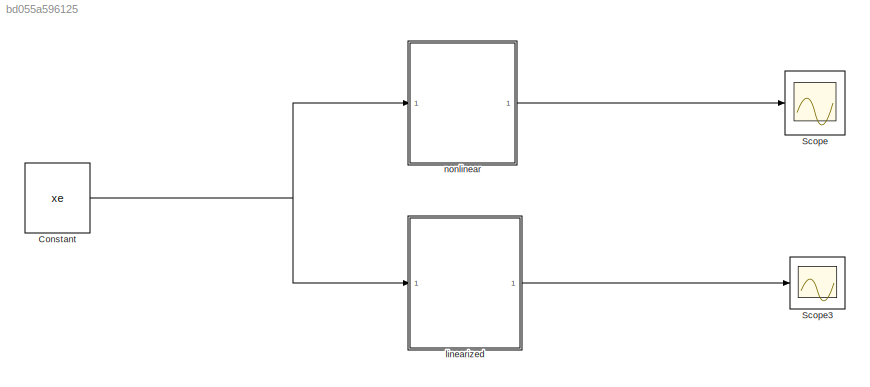
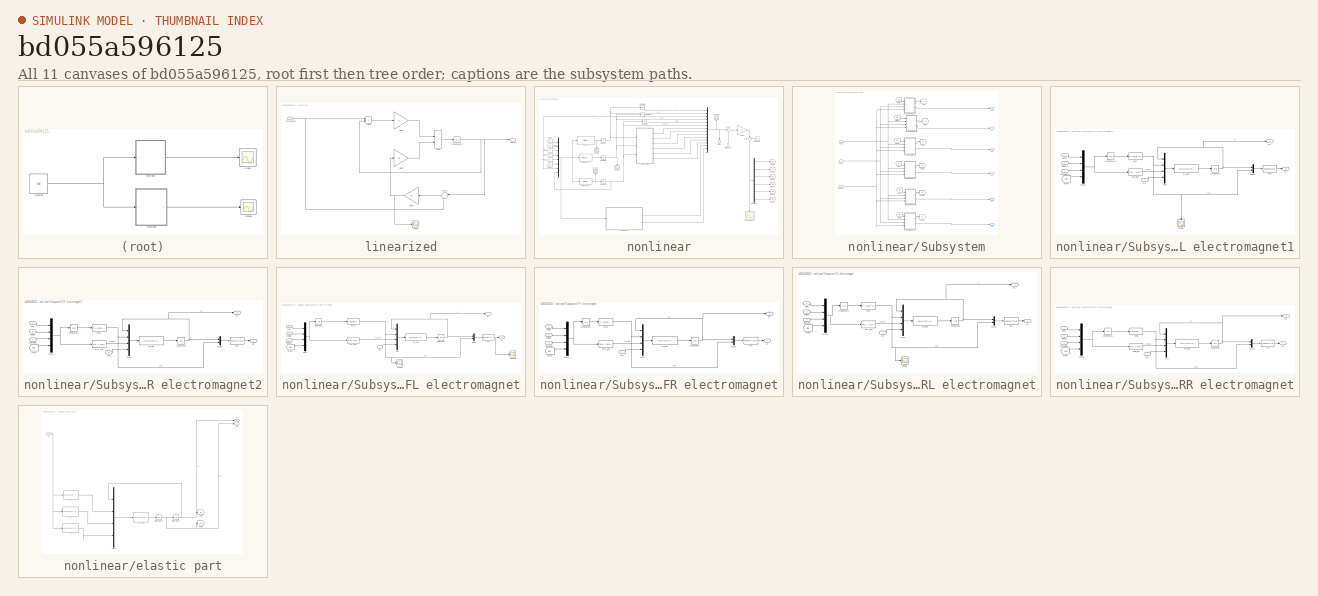
[diagram: thumbnail index - all 11 canvases of the model, root first then tree order]
MODEL slx_bd055a596125
KIND model
CONFIG AbsTol = auto
CONFIG EnableMultiTasking = off
CONFIG FixedStep = auto
CONFIG MaxStep = auto
CONFIG MinStep = auto
CONFIG RelTol = 1e-3
CONFIG SampleTimeConstraint = Unconstrained
CONFIG Solver = VariableStepAuto
CONFIG SolverName = VariableStepAuto
CONFIG StartTime = 0.0
CONFIG StopTime = 10
BLOCK [Constant] Constant
  Value = xe
BLOCK [Scope] Scope
  Floating = off
  NumInputPorts = 1
  Ports = [1]
  ScopeSpecificationString = Simulink.scopes.TimeScopeBlockCfg('CurrentConfiguration', extmgr.ConfigurationSet(extmgr.Configuration('Core','General UI',true),extmgr.Configuration('Core','Source UI',true),extmgr.Configuration('Sources','WiredSimulink',true,'DataLoggingVariableName','ScopeData2'),extmgr.Configuration('Visuals','Time Domain',true,'SerializedDisplays',{struct('MinYLimReal','-0.00317','MaxYLimReal','-0.00084','YLa...<+1991ch>
BLOCK [Scope] Scope3
  Commented = on
  Floating = off
  NumInputPorts = 1
  Ports = [1]
  ScopeSpecificationString = Simulink.scopes.TimeScopeBlockCfg('CurrentConfiguration', extmgr.ConfigurationSet(extmgr.Configuration('Core','General UI',true),extmgr.Configuration('Core','Source UI',true),extmgr.Configuration('Sources','WiredSimulink',true,'DataLoggingVariableName','ScopeData3'),extmgr.Configuration('Visuals','Time Domain',true,'SerializedDisplays',{struct('MinYLimReal','-10.6305','MaxYLimReal','95.45953','YLa...<+1890ch>
BLOCK [SubSystem] linearized
  Commented = on
  Ports = [1, 1]
  RequestExecContextInheritance = off
BLOCK [Sum] linearized/Add2
  IconShape = rectangular
  Ports = [2, 1]
BLOCK [Sum] linearized/Add3
  IconShape = rectangular
  Inputs = -+
  Ports = [2, 1]
BLOCK [Gain] linearized/Gain4
  Gain = A
  Multiplication = Matrix(K*u)
BLOCK [Gain] linearized/Gain5
  Gain = B
  Multiplication = Matrix(K*u)
BLOCK [Gain] linearized/Gain6
  Gain = -K
  Multiplication = Matrix(K*u)
BLOCK [Integrator] linearized/Integrator2
  InitialCondition = [h;0;0;0;0;0;0;0;0;0;0;0]
  Ports = [1, 1]
BLOCK [Scope] linearized/Scope
  Floating = off
  NumInputPorts = 1
  Ports = [1]
  ScopeSpecificationString = Simulink.scopes.TimeScopeBlockCfg('CurrentConfiguration', extmgr.ConfigurationSet(extmgr.Configuration('Core','General UI',true),extmgr.Configuration('Core','Source UI',true),extmgr.Configuration('Sources','WiredSimulink',true,'DataLoggingVariableName','ScopeData1'),extmgr.Configuration('Visuals','Time Domain',true,'SerializedDisplays',{struct('MinYLimReal','-3818.20973','MaxYLimReal','5994.24442'...<+1447ch>
BLOCK [Sum] linearized/Sum1
  Inputs = |+-
  Ports = [2, 1]
BLOCK [Inport] linearized/references
BLOCK [Outport] linearized/states
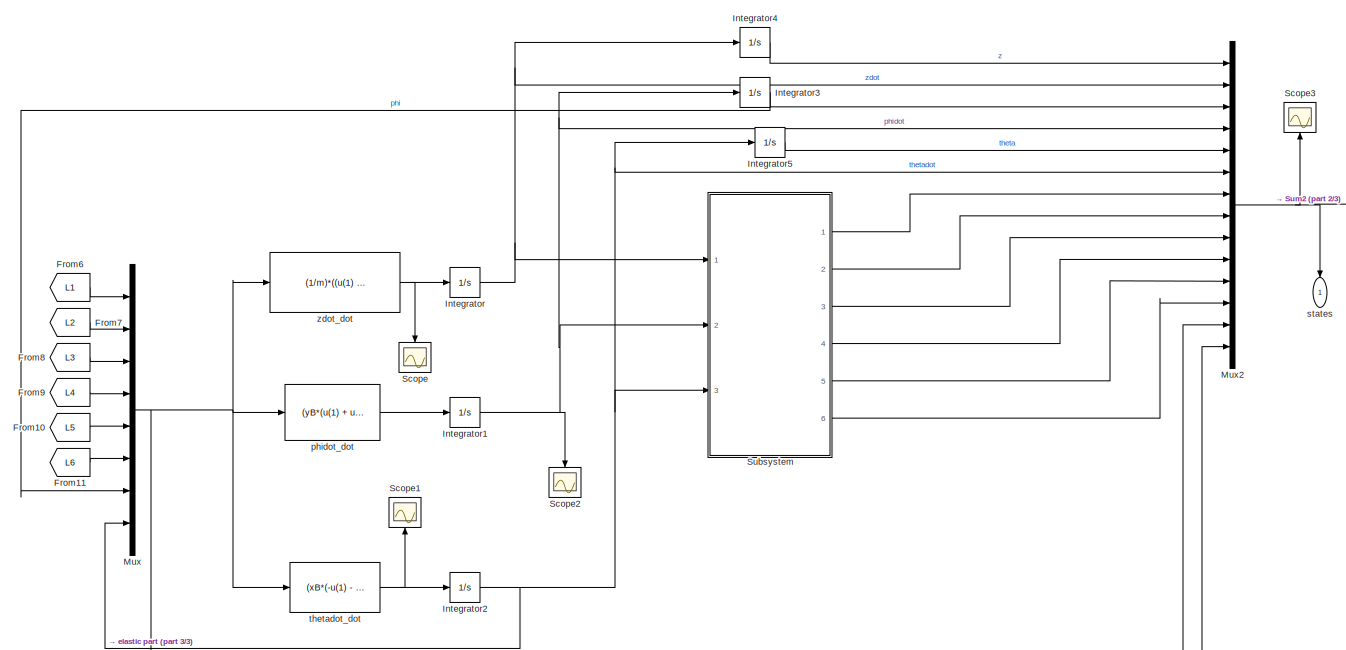
[diagram: nonlinear - part 1/3, full width, middle band]
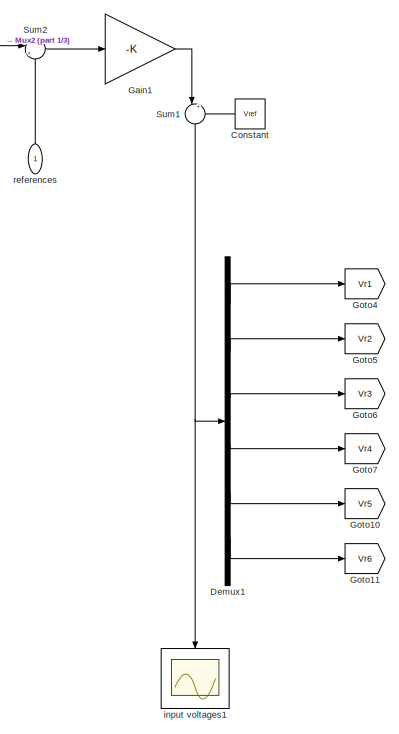
[diagram: nonlinear - part 2/3, right side, full height]
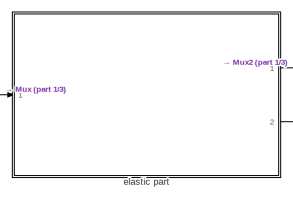
[diagram: nonlinear - part 3/3, bottom center region]
BLOCK [SubSystem] nonlinear
  Ports = [1, 1]
  RequestExecContextInheritance = off
BLOCK [Constant] nonlinear/Constant
  NameLocation = top
  Value = Vref
BLOCK [Demux] nonlinear/Demux1
  Outputs = 6
  Ports = [1, 6]
BLOCK [From] nonlinear/From10
  GotoTag = L5
  TagVisibility = global
BLOCK [From] nonlinear/From11
  GotoTag = L6
  TagVisibility = global
BLOCK [From] nonlinear/From6
  GotoTag = L1
  TagVisibility = global
BLOCK [From] nonlinear/From7
  GotoTag = L2
  TagVisibility = global
BLOCK [From] nonlinear/From8
  GotoTag = L3
  TagVisibility = global
BLOCK [From] nonlinear/From9
  GotoTag = L4
  TagVisibility = global
BLOCK [Gain] nonlinear/Gain1
  Gain = -K
  Multiplication = Matrix(K*u)
BLOCK [Goto] nonlinear/Goto10
  GotoTag = Vr5
  TagVisibility = global
BLOCK [Goto] nonlinear/Goto11
  GotoTag = Vr6
  TagVisibility = global
BLOCK [Goto] nonlinear/Goto4
  GotoTag = Vr1
  TagVisibility = global
BLOCK [Goto] nonlinear/Goto5
  GotoTag = Vr2
  TagVisibility = global
BLOCK [Goto] nonlinear/Goto6
  GotoTag = Vr3
  TagVisibility = global
BLOCK [Goto] nonlinear/Goto7
  GotoTag = Vr4
  TagVisibility = global
BLOCK [Integrator] nonlinear/Integrator
  Ports = [1, 1]
BLOCK [Integrator] nonlinear/Integrator1
  Ports = [1, 1]
BLOCK [Integrator] nonlinear/Integrator2
  Ports = [1, 1]
BLOCK [Integrator] nonlinear/Integrator3
  InitialCondition = phi_init
  Ports = [1, 1]
BLOCK [Integrator] nonlinear/Integrator4
  InitialCondition = h
  Ports = [1, 1]
BLOCK [Integrator] nonlinear/Integrator5
  InitialCondition = theta_init
  Ports = [1, 1]
BLOCK [Mux] nonlinear/Mux
  DisplayOption = bar
  Inputs = 8
  Ports = [8, 1]
BLOCK [Mux] nonlinear/Mux2
  DisplayOption = bar
  Inputs = 14
  Ports = [14, 1]
BLOCK [Scope] nonlinear/Scope
  Floating = off
  NameLocation = left
  NumInputPorts = 1
  Ports = [1]
  ScopeSpecificationString = Simulink.scopes.TimeScopeBlockCfg('CurrentConfiguration', extmgr.ConfigurationSet(extmgr.Configuration('Core','General UI',true),extmgr.Configuration('Core','Source UI',true),extmgr.Configuration('Sources','WiredSimulink',true,'DataLoggingVariableName','ScopeData1'),extmgr.Configuration('Visuals','Time Domain',true,'SerializedDisplays',{struct('MinYLimReal','-9996764.25369','MaxYLimReal','89970774...<+1466ch>
BLOCK [Scope] nonlinear/Scope1
  Floating = off
  NameLocation = right
  NumInputPorts = 1
  Ports = [1]
  ScopeSpecificationString = Simulink.scopes.TimeScopeBlockCfg('CurrentConfiguration', extmgr.ConfigurationSet(extmgr.Configuration('Core','General UI',true),extmgr.Configuration('Core','Source UI',true),extmgr.Configuration('Sources','WiredSimulink',true,'DataLoggingVariableName','ScopeData2'),extmgr.Configuration('Visuals','Time Domain',true,'SerializedDisplays',{struct('MinYLimReal','-43254613394729404086162930705448188598...<+2701ch>
BLOCK [Scope] nonlinear/Scope2
  Floating = off
  NameLocation = left
  NumInputPorts = 1
  Ports = [1]
  ScopeSpecificationString = Simulink.scopes.TimeScopeBlockCfg('CurrentConfiguration', extmgr.ConfigurationSet(extmgr.Configuration('Core','General UI',true),extmgr.Configuration('Core','Source UI',true),extmgr.Configuration('Sources','WiredSimulink',true,'DataLoggingVariableName','ScopeData3'),extmgr.Configuration('Visuals','Time Domain',true,'SerializedDisplays',{struct('MinYLimReal','-0.0000000000001','MaxYLimReal','0.0000...<+1487ch>
BLOCK [Scope] nonlinear/Scope3
  Floating = off
  NameLocation = right
  NumInputPorts = 1
  Ports = [1]
  ScopeSpecificationString = Simulink.scopes.TimeScopeBlockCfg('CurrentConfiguration', extmgr.ConfigurationSet(extmgr.Configuration('Core','General UI',true),extmgr.Configuration('Core','Source UI',true),extmgr.Configuration('Sources','WiredSimulink',true,'DataLoggingVariableName','ScopeData1'),extmgr.Configuration('Visuals','Time Domain',true,'SerializedDisplays',{struct('MinYLimReal','15.76748','MaxYLimReal','21.01921','YLa...<+1612ch>
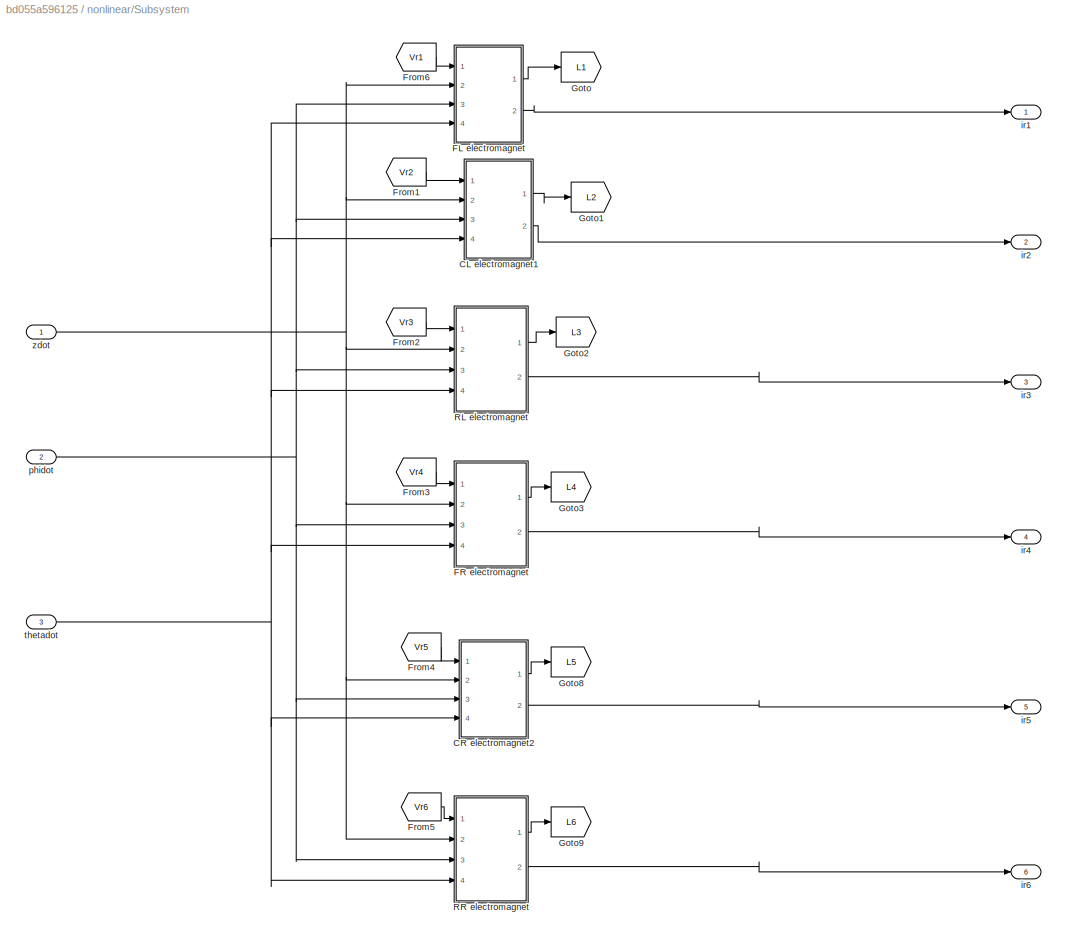
BLOCK [SubSystem] nonlinear/Subsystem
  Ports = [3, 6]
  RequestExecContextInheritance = off
BLOCK [SubSystem] nonlinear/Subsystem/CL electromagnet1
  Ports = [4, 2]
  RequestExecContextInheritance = off
BLOCK [Fcn] nonlinear/Subsystem/CL electromagnet1/Fcn
  Expr = (mu0*Nr^2*Al/4)*(u(1)/u(2))^2
BLOCK [Fcn] nonlinear/Subsystem/CL electromagnet1/Fcn1
  Expr = h + zi_rip -u(1) - u(2)*yB - u(4)*PHI12
BLOCK [From] nonlinear/Subsystem/CL electromagnet1/From
  GotoTag = vqv
  TagVisibility = global
BLOCK [Integrator] nonlinear/Subsystem/CL electromagnet1/Integrator
  Ports = [1, 1]
BLOCK [Integrator] nonlinear/Subsystem/CL electromagnet1/Integrator1
  InitialCondition = [h; phi_init; theta_init;qv_init]
  Ports = [1, 1]
BLOCK [Outport] nonlinear/Subsystem/CL electromagnet1/L2
BLOCK [Mux] nonlinear/Subsystem/CL electromagnet1/Mux
  DisplayOption = bar
  Ports = [4, 1]
BLOCK [Mux] nonlinear/Subsystem/CL electromagnet1/Mux2
  DisplayOption = bar
  Inputs = 2
  Ports = [2, 1]
BLOCK [Mux] nonlinear/Subsystem/CL electromagnet1/Mux3
  DisplayOption = bar
  Ports = [4, 1]
BLOCK [Scope] nonlinear/Subsystem/CL electromagnet1/Scope
  Floating = off
  NameLocation = left
  NumInputPorts = 1
  Ports = [1]
  ScopeSpecificationString = Simulink.scopes.TimeScopeBlockCfg('CurrentConfiguration', extmgr.ConfigurationSet(extmgr.Configuration('Core','General UI',true),extmgr.Configuration('Core','Source UI',true),extmgr.Configuration('Sources','WiredSimulink',true,'DataLoggingVariableName','ScopeData1'),extmgr.Configuration('Visuals','Time Domain',true,'SerializedDisplays',{struct('MinYLimReal','-0.00298','MaxYLimReal','0.02414','YLab...<+1436ch>
BLOCK [Inport] nonlinear/Subsystem/CL electromagnet1/Vr2
BLOCK [Outport] nonlinear/Subsystem/CL electromagnet1/ir2
  Port = 2
BLOCK [Fcn] nonlinear/Subsystem/CL electromagnet1/ir2_dot
  Expr = (u(1)/u(2))*u(3) -(2/(mu0*(Nr^2)*Al))*u(2)*(R*u(1)-u(4))
BLOCK [Inport] nonlinear/Subsystem/CL electromagnet1/phidot1
  Port = 3
BLOCK [Inport] nonlinear/Subsystem/CL electromagnet1/thetadot1
  Port = 4
BLOCK [Fcn] nonlinear/Subsystem/CL electromagnet1/zCL_dot
  Expr = -u(1) - u(2)*yB -u(4)*PHI12
BLOCK [Inport] nonlinear/Subsystem/CL electromagnet1/zdot1
  Port = 2
BLOCK [SubSystem] nonlinear/Subsystem/CR electromagnet2
  Ports = [4, 2]
  RequestExecContextInheritance = off
BLOCK [Fcn] nonlinear/Subsystem/CR electromagnet2/Fcn
  Expr = (mu0*Nr^2*Al/4)*(u(1)/u(2))^2
BLOCK [Fcn] nonlinear/Subsystem/CR electromagnet2/Fcn1
  Expr = h + zi_rip - u(1) + u(2)*yB -u(4)*PHI12
BLOCK [From] nonlinear/Subsystem/CR electromagnet2/From
  GotoTag = vqv
  TagVisibility = global
BLOCK [Integrator] nonlinear/Subsystem/CR electromagnet2/Integrator
  Ports = [1, 1]
BLOCK [Integrator] nonlinear/Subsystem/CR electromagnet2/Integrator1
  InitialCondition = [h; phi_init; theta_init;qv_init]
  Ports = [1, 1]
BLOCK [Outport] nonlinear/Subsystem/CR electromagnet2/L5
BLOCK [Mux] nonlinear/Subsystem/CR electromagnet2/Mux
  DisplayOption = bar
  Ports = [4, 1]
BLOCK [Mux] nonlinear/Subsystem/CR electromagnet2/Mux1
  DisplayOption = bar
  Ports = [4, 1]
BLOCK [Mux] nonlinear/Subsystem/CR electromagnet2/Mux2
  DisplayOption = bar
  Inputs = 2
  Ports = [2, 1]
BLOCK [Inport] nonlinear/Subsystem/CR electromagnet2/Vr5
BLOCK [Outport] nonlinear/Subsystem/CR electromagnet2/ir5
  Port = 2
BLOCK [Fcn] nonlinear/Subsystem/CR electromagnet2/ir5_dot
  Expr = (u(1)/u(2))*u(3) -(2/(mu0*(Nr^2)*Al))*u(2)*(R*u(1)-u(4))
BLOCK [Inport] nonlinear/Subsystem/CR electromagnet2/phidot
  Port = 3
BLOCK [Inport] nonlinear/Subsystem/CR electromagnet2/thetadot
  Port = 4
BLOCK [Fcn] nonlinear/Subsystem/CR electromagnet2/zCR_dot
  Expr = -u(1) + u(2)*yB - u(4)*PHI12
BLOCK [Inport] nonlinear/Subsystem/CR electromagnet2/zdot
  Port = 2
BLOCK [SubSystem] nonlinear/Subsystem/FL electromagnet
  Ports = [4, 2]
  RequestExecContextInheritance = off
BLOCK [Fcn] nonlinear/Subsystem/FL electromagnet/Fcn
  Expr = (mu0*(Nr^2)*Al/4)*(u(1)/u(2))^2
BLOCK [Fcn] nonlinear/Subsystem/FL electromagnet/Fcn1
  Expr = h + zi_rip -u(1) - u(2)*yB + u(3)*xB - u(4)*PHI4
BLOCK [From] nonlinear/Subsystem/FL electromagnet/From
  GotoTag = vqv
  TagVisibility = global
BLOCK [Integrator] nonlinear/Subsystem/FL electromagnet/Integrator
  Ports = [1, 1]
BLOCK [Integrator] nonlinear/Subsystem/FL electromagnet/Integrator1
  InitialCondition = [h; phi_init; theta_init; qv_init]
  Ports = [1, 1]
BLOCK [Outport] nonlinear/Subsystem/FL electromagnet/L1
BLOCK [Mux] nonlinear/Subsystem/FL electromagnet/Mux
  DisplayOption = bar
  Ports = [4, 1]
BLOCK [Mux] nonlinear/Subsystem/FL electromagnet/Mux1
  DisplayOption = bar
  Ports = [4, 1]
BLOCK [Mux] nonlinear/Subsystem/FL electromagnet/Mux2
  DisplayOption = bar
  Inputs = 2
  Ports = [2, 1]
BLOCK [Scope] nonlinear/Subsystem/FL electromagnet/Scope
  Floating = off
  NumInputPorts = 1
  Ports = [1]
  ScopeSpecificationString = Simulink.scopes.TimeScopeBlockCfg('CurrentConfiguration', extmgr.ConfigurationSet(extmgr.Configuration('Core','General UI',true),extmgr.Configuration('Core','Source UI',true),extmgr.Configuration('Sources','WiredSimulink',true,'DataLoggingVariableName','ScopeData1'),extmgr.Configuration('Visuals','Time Domain',true,'SerializedDisplays',{struct('MinYLimReal','0.00184','MaxYLimReal','0.02878','YLabe...<+1431ch>
BLOCK [Scope] nonlinear/Subsystem/FL electromagnet/Scope1
  Floating = off
  NumInputPorts = 1
  Ports = [1]
  ScopeSpecificationString = Simulink.scopes.TimeScopeBlockCfg('CurrentConfiguration', extmgr.ConfigurationSet(extmgr.Configuration('Core','General UI',true),extmgr.Configuration('Core','Source UI',true),extmgr.Configuration('Sources','WiredSimulink',true,'DataLoggingVariableName','ScopeData1'),extmgr.Configuration('Visuals','Time Domain',true,'SerializedDisplays',{struct('MinYLimReal','-13389.86613','MaxYLimReal','120508.795...<+1493ch>
BLOCK [Inport] nonlinear/Subsystem/FL electromagnet/Vr1
BLOCK [Outport] nonlinear/Subsystem/FL electromagnet/ir1
  Port = 2
BLOCK [Fcn] nonlinear/Subsystem/FL electromagnet/ir1_dot
  Expr = (u(1)/u(2))*u(3) - (2/(mu0*(Nr^2)*Al))*u(2)*(R*u(1)-u(4))
BLOCK [Inport] nonlinear/Subsystem/FL electromagnet/phidot
  Port = 3
BLOCK [Inport] nonlinear/Subsystem/FL electromagnet/thetadot
  Port = 4
BLOCK [Fcn] nonlinear/Subsystem/FL electromagnet/zFL_dot
  Expr = -u(1) - u(2)*yB + u(3)*xB - u(4)*PHI4
BLOCK [Inport] nonlinear/Subsystem/FL electromagnet/zdot
  Port = 2
BLOCK [SubSystem] nonlinear/Subsystem/FR electromagnet
  Ports = [4, 2]
  RequestExecContextInheritance = off
BLOCK [Fcn] nonlinear/Subsystem/FR electromagnet/Fcn
  Expr = (mu0*Nr^2*Al/4)*(u(1)/u(2))^2
BLOCK [Fcn] nonlinear/Subsystem/FR electromagnet/Fcn1
  Expr = h + zi_rip - u(1) + u(2)*yB + u(3)*xB - u(4)*PHI4
BLOCK [From] nonlinear/Subsystem/FR electromagnet/From
  GotoTag = vqv
  TagVisibility = global
BLOCK [Integrator] nonlinear/Subsystem/FR electromagnet/Integrator
  Ports = [1, 1]
BLOCK [Integrator] nonlinear/Subsystem/FR electromagnet/Integrator1
  InitialCondition = [h; phi_init; theta_init;qv_init]
  Ports = [1, 1]
BLOCK [Outport] nonlinear/Subsystem/FR electromagnet/L4
BLOCK [Mux] nonlinear/Subsystem/FR electromagnet/Mux
  DisplayOption = bar
  Ports = [4, 1]
BLOCK [Mux] nonlinear/Subsystem/FR electromagnet/Mux1
  DisplayOption = bar
  Ports = [4, 1]
BLOCK [Mux] nonlinear/Subsystem/FR electromagnet/Mux2
  DisplayOption = bar
  Inputs = 2
  Ports = [2, 1]
BLOCK [Inport] nonlinear/Subsystem/FR electromagnet/Vr4
BLOCK [Outport] nonlinear/Subsystem/FR electromagnet/ir4
  Port = 2
BLOCK [Fcn] nonlinear/Subsystem/FR electromagnet/ir4_dot
  Expr = (u(1)/u(2))*u(3) -(2/(mu0*(Nr^2)*Al))*u(2)*(R*u(1)-u(4))
BLOCK [Inport] nonlinear/Subsystem/FR electromagnet/phidot
  Port = 3
BLOCK [Inport] nonlinear/Subsystem/FR electromagnet/thetadot
  Port = 4
BLOCK [Fcn] nonlinear/Subsystem/FR electromagnet/zFR_dot
  Expr = -u(1) + u(2)*yB + u(3)*xB - u(4)*PHI4
BLOCK [Inport] nonlinear/Subsystem/FR electromagnet/zdot
  Port = 2
BLOCK [From] nonlinear/Subsystem/From1
  GotoTag = Vr2
  TagVisibility = global
BLOCK [From] nonlinear/Subsystem/From2
  GotoTag = Vr3
  TagVisibility = global
BLOCK [From] nonlinear/Subsystem/From3
  GotoTag = Vr4
  TagVisibility = global
BLOCK [From] nonlinear/Subsystem/From4
  GotoTag = Vr5
  TagVisibility = global
BLOCK [From] nonlinear/Subsystem/From5
  GotoTag = Vr6
  TagVisibility = global
BLOCK [From] nonlinear/Subsystem/From6
  GotoTag = Vr1
  TagVisibility = global
BLOCK [Goto] nonlinear/Subsystem/Goto
  GotoTag = L1
  TagVisibility = global
BLOCK [Goto] nonlinear/Subsystem/Goto1
  GotoTag = L2
  TagVisibility = global
BLOCK [Goto] nonlinear/Subsystem/Goto2
  GotoTag = L3
  TagVisibility = global
BLOCK [Goto] nonlinear/Subsystem/Goto3
  GotoTag = L4
  TagVisibility = global
BLOCK [Goto] nonlinear/Subsystem/Goto8
  GotoTag = L5
  TagVisibility = global
BLOCK [Goto] nonlinear/Subsystem/Goto9
  GotoTag = L6
  TagVisibility = global
BLOCK [SubSystem] nonlinear/Subsystem/RL electromagnet
  Ports = [4, 2]
  RequestExecContextInheritance = off
BLOCK [Fcn] nonlinear/Subsystem/RL electromagnet/Fcn
  Expr = (mu0*Nr^2*Al/4)*(u(1)/u(2))^2
BLOCK [Fcn] nonlinear/Subsystem/RL electromagnet/Fcn1
  Expr = h + zi_rip -u(1) - u(2)*yB - u(3)*xB - u(4)*PHI20
BLOCK [From] nonlinear/Subsystem/RL electromagnet/From
  GotoTag = vqv
  TagVisibility = global
BLOCK [Integrator] nonlinear/Subsystem/RL electromagnet/Integrator
  Ports = [1, 1]
BLOCK [Integrator] nonlinear/Subsystem/RL electromagnet/Integrator1
  InitialCondition = [h; phi_init; theta_init;qv_init]
  Ports = [1, 1]
BLOCK [Outport] nonlinear/Subsystem/RL electromagnet/L3
BLOCK [Mux] nonlinear/Subsystem/RL electromagnet/Mux
  DisplayOption = bar
  Ports = [4, 1]
BLOCK [Mux] nonlinear/Subsystem/RL electromagnet/Mux1
  DisplayOption = bar
  Ports = [4, 1]
BLOCK [Mux] nonlinear/Subsystem/RL electromagnet/Mux2
  DisplayOption = bar
  Inputs = 2
  Ports = [2, 1]
BLOCK [Scope] nonlinear/Subsystem/RL electromagnet/Scope
  Floating = off
  NumInputPorts = 1
  Ports = [1]
  ScopeSpecificationString = Simulink.scopes.TimeScopeBlockCfg('CurrentConfiguration', extmgr.ConfigurationSet(extmgr.Configuration('Core','General UI',true),extmgr.Configuration('Core','Source UI',true),extmgr.Configuration('Sources','WiredSimulink',true,'DataLoggingVariableName','ScopeData2'),extmgr.Configuration('Visuals','Time Domain',true,'SerializedDisplays',{struct('MinYLimReal','-0.00275','MaxYLimReal','0.12477','YLab...<+1440ch>
BLOCK [Inport] nonlinear/Subsystem/RL electromagnet/Vr3
BLOCK [Outport] nonlinear/Subsystem/RL electromagnet/ir3
  Port = 2
BLOCK [Fcn] nonlinear/Subsystem/RL electromagnet/ir3_dot
  Expr = (u(1)/u(2))*u(3) -(2/(mu0*(Nr^2)*Al))*u(2)*(R*u(1)-u(4))
BLOCK [Inport] nonlinear/Subsystem/RL electromagnet/phidot
  Port = 3
BLOCK [Inport] nonlinear/Subsystem/RL electromagnet/thetadot
  Port = 4
BLOCK [Fcn] nonlinear/Subsystem/RL electromagnet/zRL_dot
  Expr = -u(1) - u(2)*yB - u(3)*xB - u(4)*PHI20
BLOCK [Inport] nonlinear/Subsystem/RL electromagnet/zdot
  Port = 2
BLOCK [SubSystem] nonlinear/Subsystem/RR electromagnet
  Ports = [4, 2]
  RequestExecContextInheritance = off
BLOCK [Fcn] nonlinear/Subsystem/RR electromagnet/Fcn
  Expr = (mu0*Nr^2*Al/4)*(u(1)/u(2))^2
BLOCK [Fcn] nonlinear/Subsystem/RR electromagnet/Fcn1
  Expr = h + zi_rip - u(1) + u(2)*yB - u(3)*xB - u(4)*PHI20
BLOCK [From] nonlinear/Subsystem/RR electromagnet/From
  GotoTag = vqv
  TagVisibility = global
BLOCK [Integrator] nonlinear/Subsystem/RR electromagnet/Integrator
  Ports = [1, 1]
BLOCK [Integrator] nonlinear/Subsystem/RR electromagnet/Integrator1
  InitialCondition = [h; phi_init; theta_init;qv_init]
  Ports = [1, 1]
BLOCK [Outport] nonlinear/Subsystem/RR electromagnet/L6
BLOCK [Mux] nonlinear/Subsystem/RR electromagnet/Mux
  DisplayOption = bar
  Ports = [4, 1]
BLOCK [Mux] nonlinear/Subsystem/RR electromagnet/Mux1
  DisplayOption = bar
  Ports = [4, 1]
BLOCK [Mux] nonlinear/Subsystem/RR electromagnet/Mux2
  DisplayOption = bar
  Inputs = 2
  Ports = [2, 1]
BLOCK [Inport] nonlinear/Subsystem/RR electromagnet/Vr6
BLOCK [Outport] nonlinear/Subsystem/RR electromagnet/ir6
  Port = 2
BLOCK [Fcn] nonlinear/Subsystem/RR electromagnet/ir6_dot
  Expr = (u(1)/u(2))*u(3) -(2/(mu0*(Nr^2)*Al))*u(2)*(R*u(1)-u(4))
BLOCK [Inport] nonlinear/Subsystem/RR electromagnet/phidot
  Port = 3
BLOCK [Inport] nonlinear/Subsystem/RR electromagnet/thetadot
  Port = 4
BLOCK [Fcn] nonlinear/Subsystem/RR electromagnet/zRR_dot
  Expr = -u(1) + u(2)*yB - u(3)*xB - u(4)*PHI20
BLOCK [Inport] nonlinear/Subsystem/RR electromagnet/zdot
  Port = 2
BLOCK [Outport] nonlinear/Subsystem/ir1
BLOCK [Outport] nonlinear/Subsystem/ir2
  Port = 2
BLOCK [Outport] nonlinear/Subsystem/ir3
  Port = 3
BLOCK [Outport] nonlinear/Subsystem/ir4
  Port = 4
BLOCK [Outport] nonlinear/Subsystem/ir5
  Port = 5
BLOCK [Outport] nonlinear/Subsystem/ir6
  Port = 6
BLOCK [Inport] nonlinear/Subsystem/phidot
  Port = 2
BLOCK [Inport] nonlinear/Subsystem/thetadot
  Port = 3
BLOCK [Inport] nonlinear/Subsystem/zdot
BLOCK [Sum] nonlinear/Sum1
  Inputs = |++
  NameLocation = left
  Ports = [2, 1]
BLOCK [Sum] nonlinear/Sum2
  Inputs = |+-
  Ports = [2, 1]
BLOCK [SubSystem] nonlinear/elastic part
  Ports = [1, 2]
  RequestExecContextInheritance = off
BLOCK [Goto] nonlinear/elastic part/Goto
  GotoTag = qv
  TagVisibility = global
BLOCK [Goto] nonlinear/elastic part/Goto1
  GotoTag = vqv
  TagVisibility = global
BLOCK [Inport] nonlinear/elastic part/In1
BLOCK [Integrator] nonlinear/elastic part/Integrator6
  InitialCondition = vqv_init
  Ports = [1, 1]
BLOCK [Integrator] nonlinear/elastic part/Integrator7
  InitialCondition = qv_init
  Ports = [1, 1]
BLOCK [Mux] nonlinear/elastic part/Mux1
  DisplayOption = bar
  Ports = [4, 1]
BLOCK [Outport] nonlinear/elastic part/Out2
  Port = 2
BLOCK [Fcn] nonlinear/elastic part/lc
  Expr = (u(3)+u(4)-((rho*Ss*Cl/2)*(vx)^2+m*R*(u(8)^2)*sin(u(7))+m*g*cos(u(7)))/3)/l
BLOCK [Fcn] nonlinear/elastic part/lf
  Expr = (u(1)+u(2)-((rho*Ss*Cl/2)*(vx)^2+m*R*(u(8)^2)*sin(u(7))+m*g*cos(u(7)))/3)/l
BLOCK [Fcn] nonlinear/elastic part/lr
  Expr = (u(5)+u(6)-((rho*Ss*Cl/2)*(vx)^2+m*R*(u(8)^2)*sin(u(7))+m*g*cos(u(7)))/3)/l
BLOCK [Outport] nonlinear/elastic part/qv
BLOCK [Fcn] nonlinear/elastic part/vqv_dot
  Expr = -u(1)*w^2+u(2)*PHIf+u(3)*PHIc+u(4)*PHIr
BLOCK [Scope] nonlinear/input voltages1
  Floating = off
  NameLocation = left
  NumInputPorts = 1
  Ports = [1]
  ScopeSpecificationString = Simulink.scopes.TimeScopeBlockCfg('CurrentConfiguration', extmgr.ConfigurationSet(extmgr.Configuration('Core','General UI',true),extmgr.Configuration('Core','Source UI',true),extmgr.Configuration('Sources','WiredSimulink',true),extmgr.Configuration('Visuals','Time Domain',true,'SerializedDisplays',{struct('MinYLimReal','-49.89234','MaxYLimReal','114.97765','YLabelReal','','MinYLimMag','0.00000','M...<+1628ch>
BLOCK [Fcn] nonlinear/phidot_dot
  Expr = (yB*(u(1) + u(2) + u(3) - u(4) - u(5) - u(6)) + zB*(G1 - G4 + G2 - G5 + G3 - G6))/Jx
BLOCK [Inport] nonlinear/references
  NameLocation = right
BLOCK [Outport] nonlinear/states
  NameLocation = left
BLOCK [Fcn] nonlinear/thetadot_dot
  Expr = (xB*(-u(1) - u(4) + u(3) + u(6)) -zA*(rho*Ss*Cd/2)*(xdot_ref)^2+xA*(rho*Ss*Cl/2)*(xdot_ref)^2+zB*(P1+P2+P3+P4+P5+P6))/Jy
BLOCK [Fcn] nonlinear/zdot_dot
  Expr = (1/m)*((u(1) + u(2) + u(3) + u(4) + u(5) + u(6) - (rho*Ss*Cl/2)*(xdot_ref)^2 - m*g*cos(u(7)) - m*radius*(u(8)^2)*sin(u(7))))
NET Constant:1 -> linearized:1, nonlinear:1
LINE linearized/Add2:1 -> linearized/Integrator2:1
LINE linearized/Add3:1 -> linearized/Gain4:1
LINE linearized/Gain4:1 -> linearized/Add2:1
LINE linearized/Gain5:1 -> linearized/Add2:2
NET linearized/Gain6:1 -> linearized/Gain5:1, linearized/Scope:1
NET linearized/Integrator2:1 -> linearized/Add3:2, linearized/Sum1:1, linearized/states:1
LINE linearized/Sum1:1 -> linearized/Gain6:1
NET linearized/references:1 -> linearized/Add3:1, linearized/Sum1:2
LINE linearized:1 -> Scope3:1
LINE nonlinear/Constant:1 -> nonlinear/Sum1:2
LINE nonlinear/Demux1:1 -> nonlinear/Goto4:1
LINE nonlinear/Demux1:2 -> nonlinear/Goto5:1
LINE nonlinear/Demux1:3 -> nonlinear/Goto6:1
LINE nonlinear/Demux1:4 -> nonlinear/Goto7:1
LINE nonlinear/Demux1:5 -> nonlinear/Goto10:1
LINE nonlinear/Demux1:6 -> nonlinear/Goto11:1
LINE nonlinear/From10:1 -> nonlinear/Mux:5
LINE nonlinear/From11:1 -> nonlinear/Mux:6
LINE nonlinear/From6:1 -> nonlinear/Mux:1
LINE nonlinear/From7:1 -> nonlinear/Mux:2
LINE nonlinear/From8:1 -> nonlinear/Mux:3
LINE nonlinear/From9:1 -> nonlinear/Mux:4
LINE nonlinear/Gain1:1 -> nonlinear/Sum1:1
NET nonlinear/Integrator1:1 -> nonlinear/Integrator3:1, nonlinear/Mux2:4, nonlinear/Scope2:1, nonlinear/Subsystem:2
NET nonlinear/Integrator2:1 -> nonlinear/Integrator5:1, nonlinear/Mux2:6, nonlinear/Mux:8, nonlinear/Subsystem:3
NET nonlinear/Integrator3:1 -> nonlinear/Mux2:3, nonlinear/Mux:7
LINE nonlinear/Integrator4:1 -> nonlinear/Mux2:1
LINE nonlinear/Integrator5:1 -> nonlinear/Mux2:5
NET nonlinear/Integrator:1 -> nonlinear/Integrator4:1, nonlinear/Mux2:2, nonlinear/Subsystem:1
NET nonlinear/Mux2:1 -> nonlinear/Scope3:1, nonlinear/Sum2:1, nonlinear/states:1
NET nonlinear/Mux:1 -> nonlinear/elastic part:1, nonlinear/phidot_dot:1, nonlinear/thetadot_dot:1, nonlinear/zdot_dot:1
NET nonlinear/Subsystem/CL electromagnet1/Fcn1:1 -> nonlinear/Subsystem/CL electromagnet1/Mux2:2, nonlinear/Subsystem/CL electromagnet1/Mux:2, nonlinear/Subsystem/CL electromagnet1/Scope:1
LINE nonlinear/Subsystem/CL electromagnet1/Fcn:1 -> nonlinear/Subsystem/CL electromagnet1/L2:1
LINE nonlinear/Subsystem/CL electromagnet1/From:1 -> nonlinear/Subsystem/CL electromagnet1/Mux3:4
LINE nonlinear/Subsystem/CL electromagnet1/Integrator1:1 -> nonlinear/Subsystem/CL electromagnet1/Fcn1:1
NET nonlinear/Subsystem/CL electromagnet1/Integrator:1 -> nonlinear/Subsystem/CL electromagnet1/Mux2:1, nonlinear/Subsystem/CL electromagnet1/Mux:1, nonlinear/Subsystem/CL electromagnet1/ir2:1
LINE nonlinear/Subsystem/CL electromagnet1/Mux2:1 -> nonlinear/Subsystem/CL electromagnet1/Fcn:1
NET nonlinear/Subsystem/CL electromagnet1/Mux3:1 -> nonlinear/Subsystem/CL electromagnet1/Integrator1:1, nonlinear/Subsystem/CL electromagnet1/zCL_dot:1
LINE nonlinear/Subsystem/CL electromagnet1/Mux:1 -> nonlinear/Subsystem/CL electromagnet1/ir2_dot:1
LINE nonlinear/Subsystem/CL electromagnet1/Vr2:1 -> nonlinear/Subsystem/CL electromagnet1/Mux:4
LINE nonlinear/Subsystem/CL electromagnet1/ir2_dot:1 -> nonlinear/Subsystem/CL electromagnet1/Integrator:1
LINE nonlinear/Subsystem/CL electromagnet1/phidot1:1 -> nonlinear/Subsystem/CL electromagnet1/Mux3:2
LINE nonlinear/Subsystem/CL electromagnet1/thetadot1:1 -> nonlinear/Subsystem/CL electromagnet1/Mux3:3
LINE nonlinear/Subsystem/CL electromagnet1/zCL_dot:1 -> nonlinear/Subsystem/CL electromagnet1/Mux:3
LINE nonlinear/Subsystem/CL electromagnet1/zdot1:1 -> nonlinear/Subsystem/CL electromagnet1/Mux3:1
LINE nonlinear/Subsystem/CL electromagnet1:1 -> nonlinear/Subsystem/Goto1:1
LINE nonlinear/Subsystem/CL electromagnet1:2 -> nonlinear/Subsystem/ir2:1
NET nonlinear/Subsystem/CR electromagnet2/Fcn1:1 -> nonlinear/Subsystem/CR electromagnet2/Mux2:2, nonlinear/Subsystem/CR electromagnet2/Mux:2
LINE nonlinear/Subsystem/CR electromagnet2/Fcn:1 -> nonlinear/Subsystem/CR electromagnet2/L5:1
LINE nonlinear/Subsystem/CR electromagnet2/From:1 -> nonlinear/Subsystem/CR electromagnet2/Mux1:4
LINE nonlinear/Subsystem/CR electromagnet2/Integrator1:1 -> nonlinear/Subsystem/CR electromagnet2/Fcn1:1
NET nonlinear/Subsystem/CR electromagnet2/Integrator:1 -> nonlinear/Subsystem/CR electromagnet2/Mux2:1, nonlinear/Subsystem/CR electromagnet2/Mux:1, nonlinear/Subsystem/CR electromagnet2/ir5:1
NET nonlinear/Subsystem/CR electromagnet2/Mux1:1 -> nonlinear/Subsystem/CR electromagnet2/Integrator1:1, nonlinear/Subsystem/CR electromagnet2/zCR_dot:1
LINE nonlinear/Subsystem/CR electromagnet2/Mux2:1 -> nonlinear/Subsystem/CR electromagnet2/Fcn:1
LINE nonlinear/Subsystem/CR electromagnet2/Mux:1 -> nonlinear/Subsystem/CR electromagnet2/ir5_dot:1
LINE nonlinear/Subsystem/CR electromagnet2/Vr5:1 -> nonlinear/Subsystem/CR electromagnet2/Mux:4
LINE nonlinear/Subsystem/CR electromagnet2/ir5_dot:1 -> nonlinear/Subsystem/CR electromagnet2/Integrator:1
LINE nonlinear/Subsystem/CR electromagnet2/phidot:1 -> nonlinear/Subsystem/CR electromagnet2/Mux1:2
LINE nonlinear/Subsystem/CR electromagnet2/thetadot:1 -> nonlinear/Subsystem/CR electromagnet2/Mux1:3
LINE nonlinear/Subsystem/CR electromagnet2/zCR_dot:1 -> nonlinear/Subsystem/CR electromagnet2/Mux:3
LINE nonlinear/Subsystem/CR electromagnet2/zdot:1 -> nonlinear/Subsystem/CR electromagnet2/Mux1:1
LINE nonlinear/Subsystem/CR electromagnet2:1 -> nonlinear/Subsystem/Goto8:1
LINE nonlinear/Subsystem/CR electromagnet2:2 -> nonlinear/Subsystem/ir5:1
NET nonlinear/Subsystem/FL electromagnet/Fcn1:1 -> nonlinear/Subsystem/FL electromagnet/Mux2:2, nonlinear/Subsystem/FL electromagnet/Mux:2, nonlinear/Subsystem/FL electromagnet/Scope:1
NET nonlinear/Subsystem/FL electromagnet/Fcn:1 -> nonlinear/Subsystem/FL electromagnet/L1:1, nonlinear/Subsystem/FL electromagnet/Scope1:1
LINE nonlinear/Subsystem/FL electromagnet/From:1 -> nonlinear/Subsystem/FL electromagnet/Mux1:4
LINE nonlinear/Subsystem/FL electromagnet/Integrator1:1 -> nonlinear/Subsystem/FL electromagnet/Fcn1:1
NET nonlinear/Subsystem/FL electromagnet/Integrator:1 -> nonlinear/Subsystem/FL electromagnet/Mux2:1, nonlinear/Subsystem/FL electromagnet/Mux:1, nonlinear/Subsystem/FL electromagnet/ir1:1
NET nonlinear/Subsystem/FL electromagnet/Mux1:1 -> nonlinear/Subsystem/FL electromagnet/Integrator1:1, nonlinear/Subsystem/FL electromagnet/zFL_dot:1
LINE nonlinear/Subsystem/FL electromagnet/Mux2:1 -> nonlinear/Subsystem/FL electromagnet/Fcn:1
LINE nonlinear/Subsystem/FL electromagnet/Mux:1 -> nonlinear/Subsystem/FL electromagnet/ir1_dot:1
LINE nonlinear/Subsystem/FL electromagnet/Vr1:1 -> nonlinear/Subsystem/FL electromagnet/Mux:4
LINE nonlinear/Subsystem/FL electromagnet/ir1_dot:1 -> nonlinear/Subsystem/FL electromagnet/Integrator:1
LINE nonlinear/Subsystem/FL electromagnet/phidot:1 -> nonlinear/Subsystem/FL electromagnet/Mux1:2
LINE nonlinear/Subsystem/FL electromagnet/thetadot:1 -> nonlinear/Subsystem/FL electromagnet/Mux1:3
LINE nonlinear/Subsystem/FL electromagnet/zFL_dot:1 -> nonlinear/Subsystem/FL electromagnet/Mux:3
LINE nonlinear/Subsystem/FL electromagnet/zdot:1 -> nonlinear/Subsystem/FL electromagnet/Mux1:1
LINE nonlinear/Subsystem/FL electromagnet:1 -> nonlinear/Subsystem/Goto:1
LINE nonlinear/Subsystem/FL electromagnet:2 -> nonlinear/Subsystem/ir1:1
NET nonlinear/Subsystem/FR electromagnet/Fcn1:1 -> nonlinear/Subsystem/FR electromagnet/Mux2:2, nonlinear/Subsystem/FR electromagnet/Mux:2
LINE nonlinear/Subsystem/FR electromagnet/Fcn:1 -> nonlinear/Subsystem/FR electromagnet/L4:1
LINE nonlinear/Subsystem/FR electromagnet/From:1 -> nonlinear/Subsystem/FR electromagnet/Mux1:4
LINE nonlinear/Subsystem/FR electromagnet/Integrator1:1 -> nonlinear/Subsystem/FR electromagnet/Fcn1:1
NET nonlinear/Subsystem/FR electromagnet/Integrator:1 -> nonlinear/Subsystem/FR electromagnet/Mux2:1, nonlinear/Subsystem/FR electromagnet/Mux:1, nonlinear/Subsystem/FR electromagnet/ir4:1
NET nonlinear/Subsystem/FR electromagnet/Mux1:1 -> nonlinear/Subsystem/FR electromagnet/Integrator1:1, nonlinear/Subsystem/FR electromagnet/zFR_dot:1
LINE nonlinear/Subsystem/FR electromagnet/Mux2:1 -> nonlinear/Subsystem/FR electromagnet/Fcn:1
LINE nonlinear/Subsystem/FR electromagnet/Mux:1 -> nonlinear/Subsystem/FR electromagnet/ir4_dot:1
LINE nonlinear/Subsystem/FR electromagnet/Vr4:1 -> nonlinear/Subsystem/FR electromagnet/Mux:4
LINE nonlinear/Subsystem/FR electromagnet/ir4_dot:1 -> nonlinear/Subsystem/FR electromagnet/Integrator:1
LINE nonlinear/Subsystem/FR electromagnet/phidot:1 -> nonlinear/Subsystem/FR electromagnet/Mux1:2
LINE nonlinear/Subsystem/FR electromagnet/thetadot:1 -> nonlinear/Subsystem/FR electromagnet/Mux1:3
LINE nonlinear/Subsystem/FR electromagnet/zFR_dot:1 -> nonlinear/Subsystem/FR electromagnet/Mux:3
LINE nonlinear/Subsystem/FR electromagnet/zdot:1 -> nonlinear/Subsystem/FR electromagnet/Mux1:1
LINE nonlinear/Subsystem/FR electromagnet:1 -> nonlinear/Subsystem/Goto3:1
LINE nonlinear/Subsystem/FR electromagnet:2 -> nonlinear/Subsystem/ir4:1
LINE nonlinear/Subsystem/From1:1 -> nonlinear/Subsystem/CL electromagnet1:1
LINE nonlinear/Subsystem/From2:1 -> nonlinear/Subsystem/RL electromagnet:1
LINE nonlinear/Subsystem/From3:1 -> nonlinear/Subsystem/FR electromagnet:1
LINE nonlinear/Subsystem/From4:1 -> nonlinear/Subsystem/CR electromagnet2:1
LINE nonlinear/Subsystem/From5:1 -> nonlinear/Subsystem/RR electromagnet:1
LINE nonlinear/Subsystem/From6:1 -> nonlinear/Subsystem/FL electromagnet:1
NET nonlinear/Subsystem/RL electromagnet/Fcn1:1 -> nonlinear/Subsystem/RL electromagnet/Mux2:2, nonlinear/Subsystem/RL electromagnet/Mux:2, nonlinear/Subsystem/RL electromagnet/Scope:1
LINE nonlinear/Subsystem/RL electromagnet/Fcn:1 -> nonlinear/Subsystem/RL electromagnet/L3:1
LINE nonlinear/Subsystem/RL electromagnet/From:1 -> nonlinear/Subsystem/RL electromagnet/Mux1:4
LINE nonlinear/Subsystem/RL electromagnet/Integrator1:1 -> nonlinear/Subsystem/RL electromagnet/Fcn1:1
NET nonlinear/Subsystem/RL electromagnet/Integrator:1 -> nonlinear/Subsystem/RL electromagnet/Mux2:1, nonlinear/Subsystem/RL electromagnet/Mux:1, nonlinear/Subsystem/RL electromagnet/ir3:1
NET nonlinear/Subsystem/RL electromagnet/Mux1:1 -> nonlinear/Subsystem/RL electromagnet/Integrator1:1, nonlinear/Subsystem/RL electromagnet/zRL_dot:1
LINE nonlinear/Subsystem/RL electromagnet/Mux2:1 -> nonlinear/Subsystem/RL electromagnet/Fcn:1
LINE nonlinear/Subsystem/RL electromagnet/Mux:1 -> nonlinear/Subsystem/RL electromagnet/ir3_dot:1
LINE nonlinear/Subsystem/RL electromagnet/Vr3:1 -> nonlinear/Subsystem/RL electromagnet/Mux:4
LINE nonlinear/Subsystem/RL electromagnet/ir3_dot:1 -> nonlinear/Subsystem/RL electromagnet/Integrator:1
LINE nonlinear/Subsystem/RL electromagnet/phidot:1 -> nonlinear/Subsystem/RL electromagnet/Mux1:2
LINE nonlinear/Subsystem/RL electromagnet/thetadot:1 -> nonlinear/Subsystem/RL electromagnet/Mux1:3
LINE nonlinear/Subsystem/RL electromagnet/zRL_dot:1 -> nonlinear/Subsystem/RL electromagnet/Mux:3
LINE nonlinear/Subsystem/RL electromagnet/zdot:1 -> nonlinear/Subsystem/RL electromagnet/Mux1:1
LINE nonlinear/Subsystem/RL electromagnet:1 -> nonlinear/Subsystem/Goto2:1
LINE nonlinear/Subsystem/RL electromagnet:2 -> nonlinear/Subsystem/ir3:1
NET nonlinear/Subsystem/RR electromagnet/Fcn1:1 -> nonlinear/Subsystem/RR electromagnet/Mux2:2, nonlinear/Subsystem/RR electromagnet/Mux:2
LINE nonlinear/Subsystem/RR electromagnet/Fcn:1 -> nonlinear/Subsystem/RR electromagnet/L6:1
LINE nonlinear/Subsystem/RR electromagnet/From:1 -> nonlinear/Subsystem/RR electromagnet/Mux1:4
LINE nonlinear/Subsystem/RR electromagnet/Integrator1:1 -> nonlinear/Subsystem/RR electromagnet/Fcn1:1
NET nonlinear/Subsystem/RR electromagnet/Integrator:1 -> nonlinear/Subsystem/RR electromagnet/Mux2:1, nonlinear/Subsystem/RR electromagnet/Mux:1, nonlinear/Subsystem/RR electromagnet/ir6:1
NET nonlinear/Subsystem/RR electromagnet/Mux1:1 -> nonlinear/Subsystem/RR electromagnet/Integrator1:1, nonlinear/Subsystem/RR electromagnet/zRR_dot:1
LINE nonlinear/Subsystem/RR electromagnet/Mux2:1 -> nonlinear/Subsystem/RR electromagnet/Fcn:1
LINE nonlinear/Subsystem/RR electromagnet/Mux:1 -> nonlinear/Subsystem/RR electromagnet/ir6_dot:1
LINE nonlinear/Subsystem/RR electromagnet/Vr6:1 -> nonlinear/Subsystem/RR electromagnet/Mux:4
LINE nonlinear/Subsystem/RR electromagnet/ir6_dot:1 -> nonlinear/Subsystem/RR electromagnet/Integrator:1
LINE nonlinear/Subsystem/RR electromagnet/phidot:1 -> nonlinear/Subsystem/RR electromagnet/Mux1:2
LINE nonlinear/Subsystem/RR electromagnet/thetadot:1 -> nonlinear/Subsystem/RR electromagnet/Mux1:3
LINE nonlinear/Subsystem/RR electromagnet/zRR_dot:1 -> nonlinear/Subsystem/RR electromagnet/Mux:3
LINE nonlinear/Subsystem/RR electromagnet/zdot:1 -> nonlinear/Subsystem/RR electromagnet/Mux1:1
LINE nonlinear/Subsystem/RR electromagnet:1 -> nonlinear/Subsystem/Goto9:1
LINE nonlinear/Subsystem/RR electromagnet:2 -> nonlinear/Subsystem/ir6:1
NET nonlinear/Subsystem/phidot:1 -> nonlinear/Subsystem/CL electromagnet1:3, nonlinear/Subsystem/CR electromagnet2:3, nonlinear/Subsystem/FL electromagnet:3, nonlinear/Subsystem/FR electromagnet:3, nonlinear/Subsystem/RL electromagnet:3, nonlinear/Subsystem/RR electromagnet:3
NET nonlinear/Subsystem/thetadot:1 -> nonlinear/Subsystem/CL electromagnet1:4, nonlinear/Subsystem/CR electromagnet2:4, nonlinear/Subsystem/FL electromagnet:4, nonlinear/Subsystem/FR electromagnet:4, nonlinear/Subsystem/RL electromagnet:4, nonlinear/Subsystem/RR electromagnet:4
NET nonlinear/Subsystem/zdot:1 -> nonlinear/Subsystem/CL electromagnet1:2, nonlinear/Subsystem/CR electromagnet2:2, nonlinear/Subsystem/FL electromagnet:2, nonlinear/Subsystem/FR electromagnet:2, nonlinear/Subsystem/RL electromagnet:2, nonlinear/Subsystem/RR electromagnet:2
LINE nonlinear/Subsystem:1 -> nonlinear/Mux2:7
LINE nonlinear/Subsystem:2 -> nonlinear/Mux2:8
LINE nonlinear/Subsystem:3 -> nonlinear/Mux2:9
LINE nonlinear/Subsystem:4 -> nonlinear/Mux2:10
LINE nonlinear/Subsystem:5 -> nonlinear/Mux2:11
LINE nonlinear/Subsystem:6 -> nonlinear/Mux2:12
NET nonlinear/Sum1:1 -> nonlinear/Demux1:1, nonlinear/input voltages1:1
LINE nonlinear/Sum2:1 -> nonlinear/Gain1:1
NET nonlinear/elastic part/In1:1 -> nonlinear/elastic part/lc:1, nonlinear/elastic part/lf:1, nonlinear/elastic part/lr:1
NET nonlinear/elastic part/Integrator6:1 -> nonlinear/elastic part/Goto1:1, nonlinear/elastic part/Integrator7:1, nonlinear/elastic part/Out2:1
NET nonlinear/elastic part/Integrator7:1 -> nonlinear/elastic part/Goto:1, nonlinear/elastic part/Mux1:1, nonlinear/elastic part/qv:1
LINE nonlinear/elastic part/Mux1:1 -> nonlinear/elastic part/vqv_dot:1
LINE nonlinear/elastic part/lc:1 -> nonlinear/elastic part/Mux1:3
LINE nonlinear/elastic part/lf:1 -> nonlinear/elastic part/Mux1:2
LINE nonlinear/elastic part/lr:1 -> nonlinear/elastic part/Mux1:4
LINE nonlinear/elastic part/vqv_dot:1 -> nonlinear/elastic part/Integrator6:1
LINE nonlinear/elastic part:1 -> nonlinear/Mux2:13
LINE nonlinear/elastic part:2 -> nonlinear/Mux2:14
LINE nonlinear/phidot_dot:1 -> nonlinear/Integrator1:1
LINE nonlinear/references:1 -> nonlinear/Sum2:2
NET nonlinear/thetadot_dot:1 -> nonlinear/Integrator2:1, nonlinear/Scope1:1
NET nonlinear/zdot_dot:1 -> nonlinear/Integrator:1, nonlinear/Scope:1
LINE nonlinear:1 -> Scope:1
note: NET lines group one-source signal fan-out (src -> all destinations, sorted); 1:1 wires keep LINE
